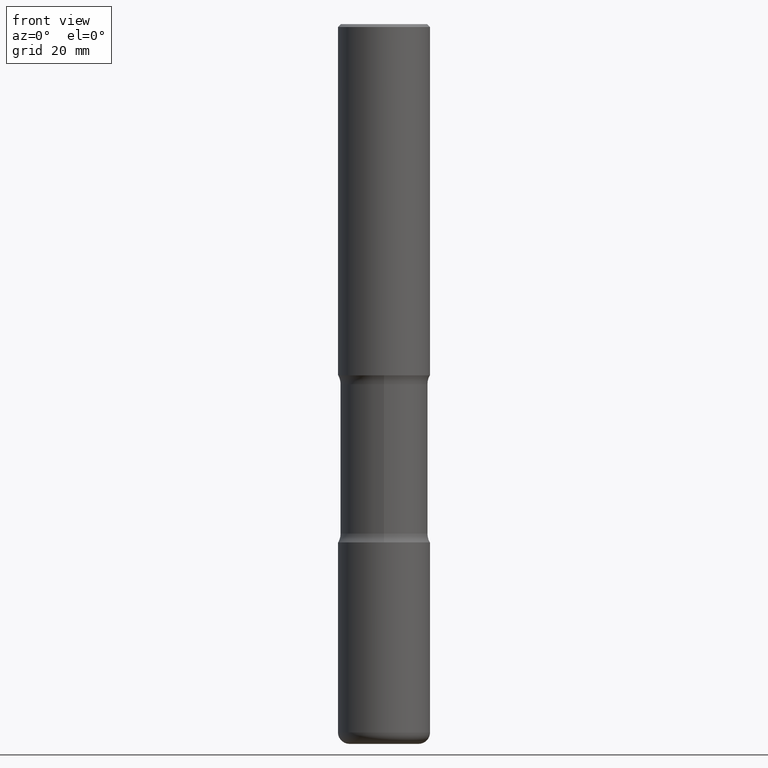
[diagram: clean part render]
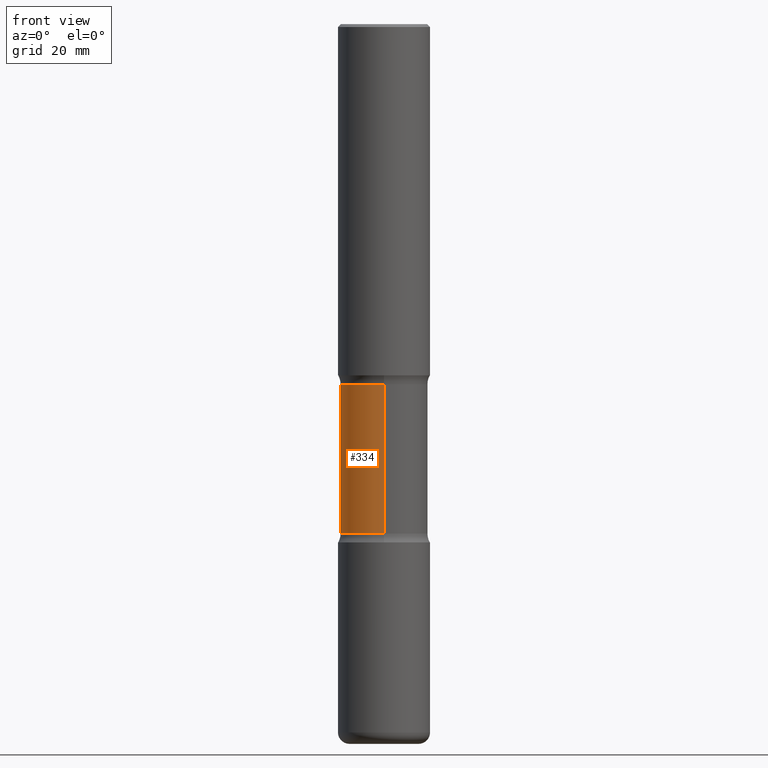
[diagram: same view with one face highlighted and labeled with its STEP entity id]
A machine part, front view. The second image highlights one B-rep face of the part: STEP entity #334.
In plain terms, the highlighted cylindrical surface (partial cylindrical patch) has radius 7.5997 mm, axis along (0, -0, -1).
Its self-contained STEP definition (entity closure, byte-faithful):
#5 = CARTESIAN_POINT ( 'NONE',  ( 2.089302433163816004E-15, 0.2991999999999878646, -3.482559259964997711 ) ) ;
#24 = VERTEX_POINT ( 'NONE', #338 ) ;
#32 = EDGE_CURVE ( 'NONE', #259, #24, #490, .T. ) ;
#90 = EDGE_CURVE ( 'NONE', #259, #542, #395, .T. ) ;
#93 = CARTESIAN_POINT ( 'NONE',  ( -2.052661000933121010E-15, -0.2992000000000170634, -4.921299999999999564 ) ) ;
#102 = CARTESIAN_POINT ( 'NONE',  ( -2.106687422665607929E-15, -0.2992000000000121784, -3.482559259964995491 ) ) ;
#126 = CARTESIAN_POINT ( 'NONE',  ( -2.106687422665635539E-15, -0.2992000000000087367, -2.462340740035004139 ) ) ;
#132 = DIRECTION ( 'NONE',  ( 2.514961011121466661E-29, -3.391964546123646738E-15, -1.000000000000000000 ) ) ;
#135 = FACE_OUTER_BOUND ( 'NONE', #473, .T. ) ;
#207 = ORIENTED_EDGE ( 'NONE', *, *, #233, .T. ) ;
#224 = DIRECTION ( 'NONE',  ( 6.982962677686265922E-15, 1.000000000000000000, -3.652203200085913145E-15 ) ) ;
#226 = DIRECTION ( 'NONE',  ( 6.982962677686265922E-15, 1.000000000000000000, -3.652203200085913145E-15 ) ) ;
#230 = CARTESIAN_POINT ( 'NONE',  ( 1.213064589428117588E-28, -1.704549297248130466E-14, -4.921300000000000452 ) ) ;
#233 = EDGE_CURVE ( 'NONE', #24, #322, #309, .T. ) ;
#234 = ORIENTED_EDGE ( 'NONE', *, *, #546, .F. ) ;
#248 = VECTOR ( 'NONE', #477, 39.37007874015748143 ) ;
#259 = VERTEX_POINT ( 'NONE', #126 ) ;
#266 = DIRECTION ( 'NONE',  ( 2.514961011121466661E-29, -3.391964546123646738E-15, -1.000000000000000000 ) ) ;
#277 = CYLINDRICAL_SURFACE ( 'NONE', #375, 0.2992000000000000215 ) ;
#309 = LINE ( 'NONE', #389, #248 ) ;
#313 = CARTESIAN_POINT ( 'NONE',  ( 5.946459227533120264E-29, -8.704790342317601483E-15, -2.462340740035005471 ) ) ;
#322 = VERTEX_POINT ( 'NONE', #5 ) ;
#328 = ORIENTED_EDGE ( 'NONE', *, *, #32, .T. ) ;
#334 = ADVANCED_FACE ( 'NONE', ( #135 ), #277, .T. ) ;
#338 = CARTESIAN_POINT ( 'NONE',  ( 2.089302433163790366E-15, 0.2991999999999913062, -2.462340740035006359 ) ) ;
#367 = DIRECTION ( 'NONE',  ( 6.982962677686265922E-15, 1.000000000000000000, -3.652203200085913145E-15 ) ) ;
#375 = AXIS2_PLACEMENT_3D ( 'NONE', #230, #132, #226 ) ;
#389 = CARTESIAN_POINT ( 'NONE',  ( 2.089302433163852292E-15, 0.2991999999999829796, -4.921300000000002228 ) ) ;
#395 = LINE ( 'NONE', #93, #509 ) ;
#410 = CIRCLE ( 'NONE', #429, 0.2992000000000000215 ) ;
#415 = DIRECTION ( 'NONE',  ( 2.514961011121466661E-29, -3.391964546123646738E-15, -1.000000000000000000 ) ) ;
#429 = AXIS2_PLACEMENT_3D ( 'NONE', #503, #415, #367 ) ;
#431 = ORIENTED_EDGE ( 'NONE', *, *, #90, .F. ) ;
#438 = DIRECTION ( 'NONE',  ( 2.514961011121466661E-29, -3.391964546123647133E-15, -1.000000000000000000 ) ) ;
#473 = EDGE_LOOP ( 'NONE', ( #431, #328, #207, #234 ) ) ;
#477 = DIRECTION ( 'NONE',  ( 2.514961011121466661E-29, -3.391964546123647133E-15, -1.000000000000000000 ) ) ;
#490 = CIRCLE ( 'NONE', #557, 0.2992000000000000215 ) ;
#503 = CARTESIAN_POINT ( 'NONE',  ( 8.512269027981096619E-29, -1.216533539121887276E-14, -3.482559259964996379 ) ) ;
#509 = VECTOR ( 'NONE', #438, 39.37007874015748143 ) ;
#542 = VERTEX_POINT ( 'NONE', #102 ) ;
#546 = EDGE_CURVE ( 'NONE', #542, #322, #410, .T. ) ;
#557 = AXIS2_PLACEMENT_3D ( 'NONE', #313, #266, #224 ) ;